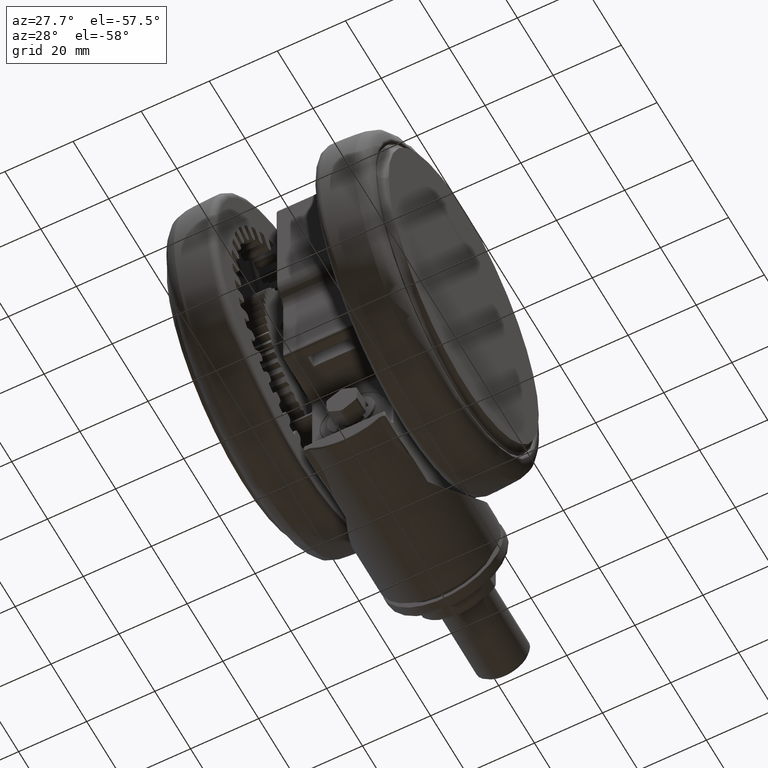
[diagram: clean part render]
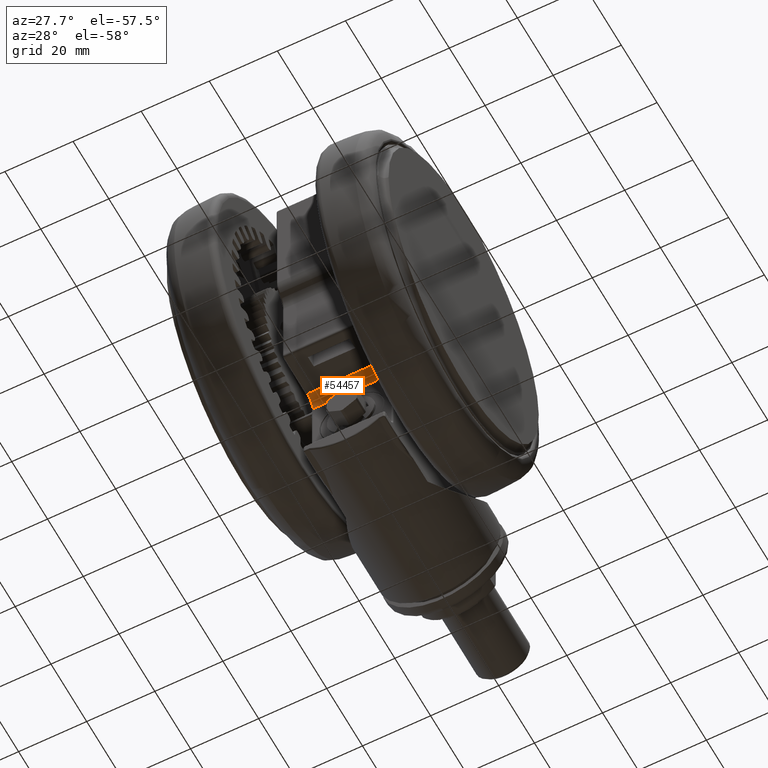
[diagram: same view with one face highlighted and labeled with its STEP entity id]
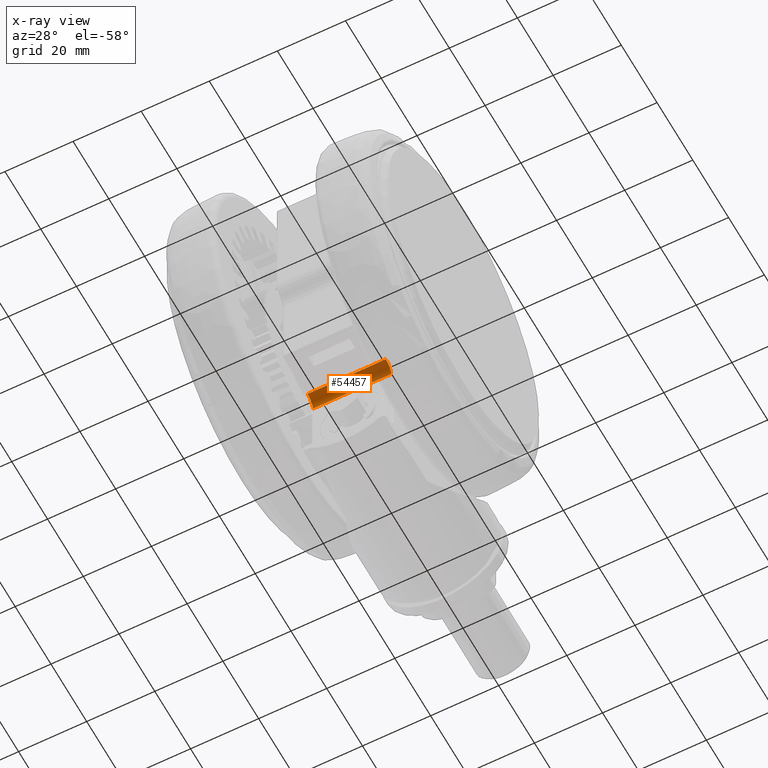
[diagram: x-ray of the same camera — body ghosted, the highlighted face saturated]
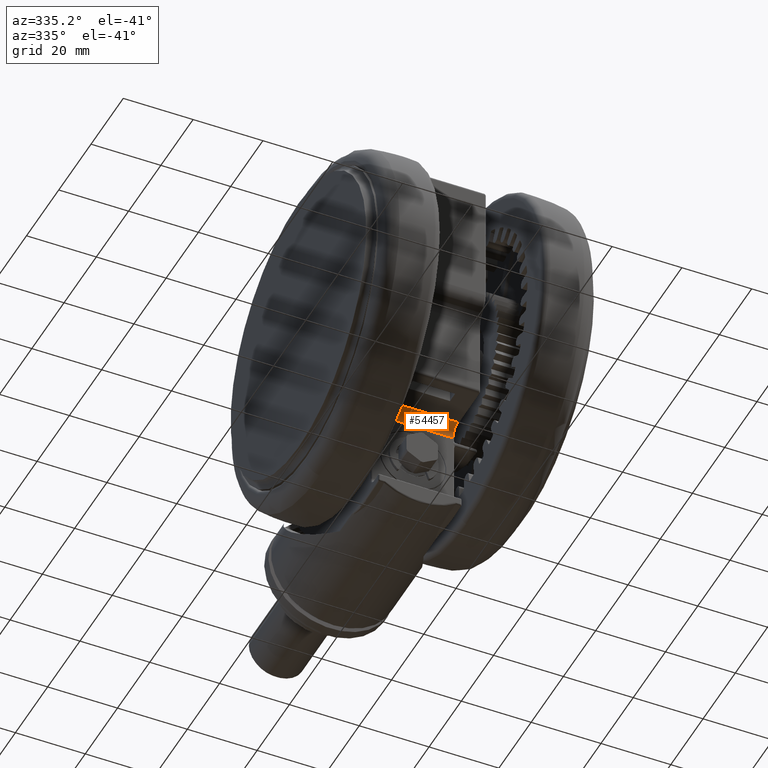
[diagram: same view with one face highlighted and labeled with its STEP entity id]
A machine part, auxiliary view. The second image highlights one B-rep face of the part: STEP entity #54457.
The next image is the same camera in x-ray: the body ghosted, the highlighted face saturated — about 19% of this face is hidden behind the body in this view.
A second angle (auxiliary view) of the same face is appended — the face is thin or edge-on in the first view.
In plain terms, the highlighted cylindrical surface (edge-blend (fillet) strip) has radius 3 mm, axis along (-1, 0, 0).
Its self-contained STEP definition (entity closure, byte-faithful):
#1317 = DIRECTION ( 'NONE',  ( -0.0000000000000000000, -0.0000000000000000000, -1.000000000000000000 ) ) ;
#3185 = CIRCLE ( 'NONE', #42150, 2.999999999999999600 ) ;
#13553 = LINE ( 'NONE', #58429, #78774 ) ;
#13876 = EDGE_CURVE ( 'NONE', #71992, #55019, #79292, .T. ) ;
#14945 = DIRECTION ( 'NONE',  ( -0.0000000000000000000, 0.0000000000000000000, -1.000000000000000000 ) ) ;
#16485 = ORIENTED_EDGE ( 'NONE', *, *, #13876, .F. ) ;
#21846 = DIRECTION ( 'NONE',  ( 0.0000000000000000000, 0.0000000000000000000, 1.000000000000000000 ) ) ;
#22593 = ORIENTED_EDGE ( 'NONE', *, *, #68205, .T. ) ;
#24974 = VECTOR ( 'NONE', #21846, 1000.000000000000000 ) ;
#25591 = CARTESIAN_POINT ( 'NONE',  ( 3.865550617534116600, 22.92639016162163300, -21.09999999999991300 ) ) ;
#28929 = VERTEX_POINT ( 'NONE', #46607 ) ;
#30627 = AXIS2_PLACEMENT_3D ( 'NONE', #39151, #1317, #45559 ) ;
#31564 = CARTESIAN_POINT ( 'NONE',  ( 0.8661664603839126500, 22.98717402326568800, -21.09999999999991300 ) ) ;
#31917 = DIRECTION ( 'NONE',  ( 0.02026128721468462700, 0.9997947190500678900, 0.0000000000000000000 ) ) ;
#33873 = CYLINDRICAL_SURFACE ( 'NONE', #35962, 2.999999999999999600 ) ;
#35962 = AXIS2_PLACEMENT_3D ( 'NONE', #77912, #14945, #59162 ) ;
#37432 = EDGE_LOOP ( 'NONE', ( #67737, #22593, #16485, #65932 ) ) ;
#39151 = CARTESIAN_POINT ( 'NONE',  ( 3.865550617534116600, 22.92639016162163300, -44.09999999999991600 ) ) ;
#39657 = DIRECTION ( 'NONE',  ( -0.0000000000000000000, -0.0000000000000000000, -1.000000000000000000 ) ) ;
#42150 = AXIS2_PLACEMENT_3D ( 'NONE', #25591, #69762, #31917 ) ;
#43205 = EDGE_CURVE ( 'NONE', #50751, #28929, #13553, .T. ) ;
#45559 = DIRECTION ( 'NONE',  ( 0.02026128721468462700, 0.9997947190500678900, 0.0000000000000000000 ) ) ;
#46607 = CARTESIAN_POINT ( 'NONE',  ( 0.8661664603839126500, 22.98717402326568800, -44.09999999999991600 ) ) ;
#50751 = VERTEX_POINT ( 'NONE', #31564 ) ;
#54457 = ADVANCED_FACE ( 'NONE', ( #67432 ), #33873, .F. ) ;
#55019 = VERTEX_POINT ( 'NONE', #58529 ) ;
#58429 = CARTESIAN_POINT ( 'NONE',  ( 0.8661664603839126500, 22.98717402326568800, -44.59999999999991600 ) ) ;
#58529 = CARTESIAN_POINT ( 'NONE',  ( 3.804766755890062400, 19.92700600447143000, -21.09999999999991300 ) ) ;
#59162 = DIRECTION ( 'NONE',  ( -0.02026128721468462700, -0.9997947190500678900, 0.0000000000000000000 ) ) ;
#65932 = ORIENTED_EDGE ( 'NONE', *, *, #70270, .T. ) ;
#66011 = CARTESIAN_POINT ( 'NONE',  ( 3.804766755890062400, 19.92700600447143000, -20.59999999999991300 ) ) ;
#67432 = FACE_OUTER_BOUND ( 'NONE', #37432, .T. ) ;
#67737 = ORIENTED_EDGE ( 'NONE', *, *, #43205, .F. ) ;
#68205 = EDGE_CURVE ( 'NONE', #50751, #55019, #3185, .T. ) ;
#69762 = DIRECTION ( 'NONE',  ( 0.0000000000000000000, 0.0000000000000000000, 1.000000000000000000 ) ) ;
#70270 = EDGE_CURVE ( 'NONE', #71992, #28929, #71030, .T. ) ;
#71030 = CIRCLE ( 'NONE', #30627, 2.999999999999999600 ) ;
#71992 = VERTEX_POINT ( 'NONE', #79861 ) ;
#77912 = CARTESIAN_POINT ( 'NONE',  ( 3.865550617534116600, 22.92639016162163300, -20.59999999999991300 ) ) ;
#78774 = VECTOR ( 'NONE', #39657, 1000.000000000000000 ) ;
#79292 = LINE ( 'NONE', #66011, #24974 ) ;
#79861 = CARTESIAN_POINT ( 'NONE',  ( 3.804766755890062400, 19.92700600447143000, -44.09999999999991600 ) ) ;